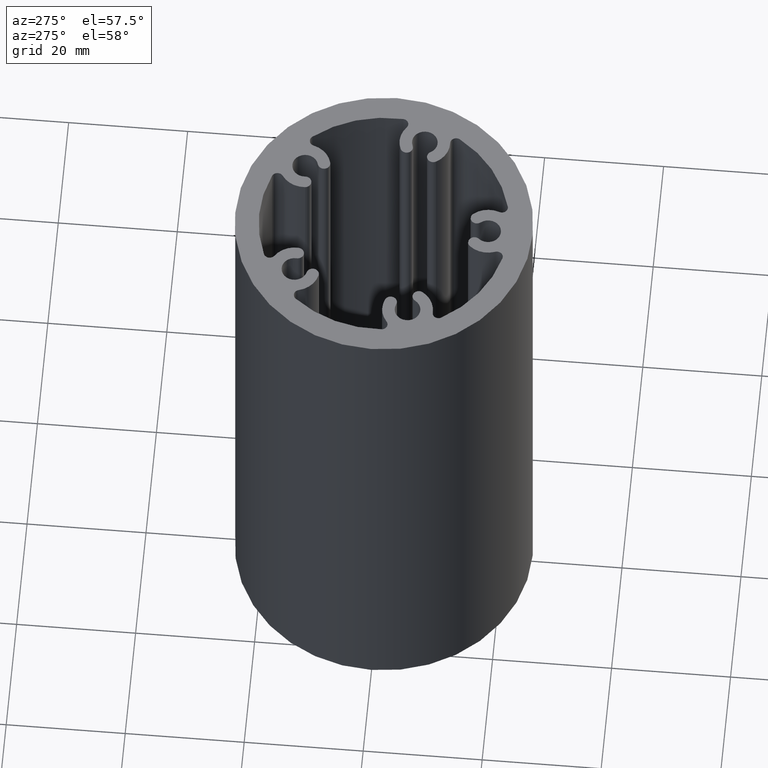
[diagram: clean part render]
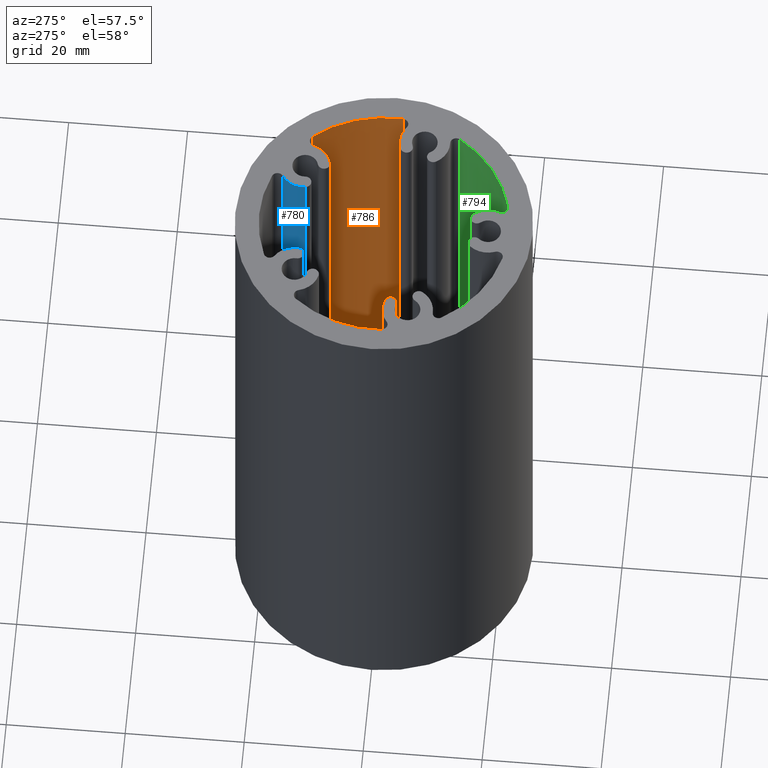
[diagram: same view with three faces highlighted in distinct colors, each labeled with its STEP entity id]
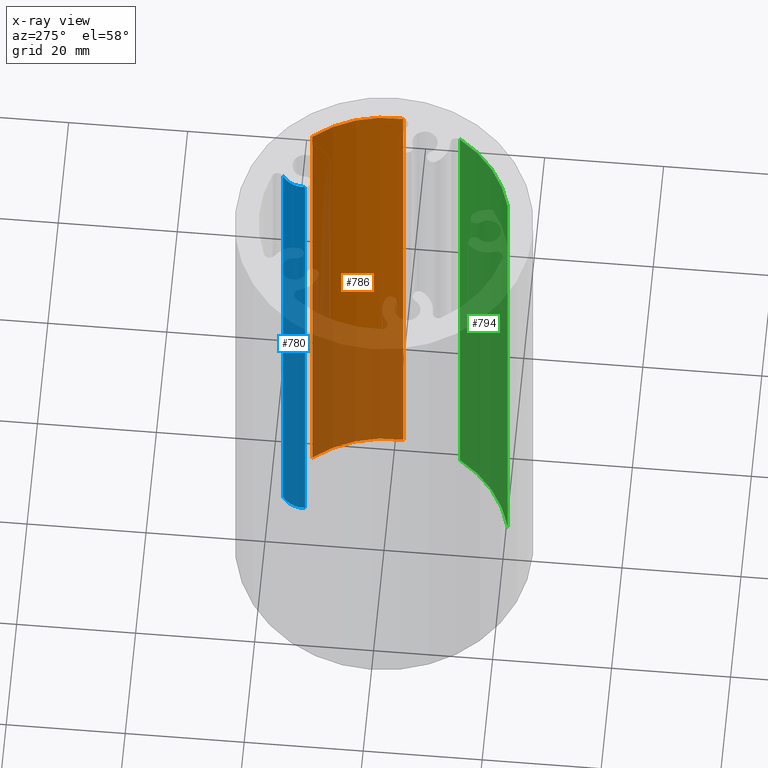
[diagram: x-ray of the same camera — body ghosted, the three highlighted faces saturated]
A machine part, auxiliary view with three faces highlighted in distinct colors.
The next image is the same camera in x-ray (body ghosted, the three faces saturated) — at least one of them is partly hidden behind the body in this view.
Their STEP definitions:

[orange] entity #786 — the highlighted cylindrical surface (partial cylindrical patch) has radius 21 mm, axis along (0, 0, 1).
#46=FACE_OUTER_BOUND('',#89,.T.);
#89=EDGE_LOOP('',(#579,#580,#581,#582));
#161=CIRCLE('',#884,20.9999999999894);
#162=CIRCLE('',#885,20.9999999999894);
#217=LINE('',#1380,#257);
#218=LINE('',#1386,#258);
#257=VECTOR('',#1112,100.);
#258=VECTOR('',#1119,100.);
#323=VERTEX_POINT('',#1377);
#324=VERTEX_POINT('',#1379);
#325=VERTEX_POINT('',#1383);
#326=VERTEX_POINT('',#1385);
#430=EDGE_CURVE('',#324,#323,#217,.T.);
#432=EDGE_CURVE('',#325,#323,#161,.T.);
#433=EDGE_CURVE('',#326,#325,#218,.T.);
#434=EDGE_CURVE('',#324,#326,#162,.T.);
#579=ORIENTED_EDGE('',*,*,#430,.T.);
#580=ORIENTED_EDGE('',*,*,#432,.F.);
#581=ORIENTED_EDGE('',*,*,#433,.F.);
#582=ORIENTED_EDGE('',*,*,#434,.F.);
#745=CYLINDRICAL_SURFACE('',#883,20.9999999999894);
#786=ADVANCED_FACE('',(#46),#745,.F.);
#883=AXIS2_PLACEMENT_3D('',#1382,#1115,#1116);
#884=AXIS2_PLACEMENT_3D('',#1384,#1117,#1118);
#885=AXIS2_PLACEMENT_3D('',#1387,#1120,#1121);
#1112=DIRECTION('',(0.,0.,-1.));
#1115=DIRECTION('center_axis',(0.,0.,1.));
#1116=DIRECTION('ref_axis',(-0.997772101559606,0.0667145662455169,0.));
#1117=DIRECTION('center_axis',(0.,0.,1.));
#1118=DIRECTION('ref_axis',(-0.997772101559606,0.0667145662455169,0.));
#1119=DIRECTION('',(0.,0.,-1.));
#1120=DIRECTION('center_axis',(0.,0.,-1.));
#1121=DIRECTION('ref_axis',(-0.997772101559606,0.0667145662455169,0.));
#1377=CARTESIAN_POINT('',(16.1280160790691,13.4494273986893,-50.));
#1379=CARTESIAN_POINT('',(16.1280160790691,13.4494273986893,50.));
#1380=CARTESIAN_POINT('',(16.1280160790691,13.4494273986893,0.));
#1382=CARTESIAN_POINT('Origin',(0.,0.,0.));
#1383=CARTESIAN_POINT('',(20.9532141327312,-1.40100589115448,-50.));
#1384=CARTESIAN_POINT('Origin',(0.,0.,-50.));
#1385=CARTESIAN_POINT('',(20.9532141327312,-1.40100589115448,50.));
#1386=CARTESIAN_POINT('',(20.9532141327312,-1.40100589115448,0.));
#1387=CARTESIAN_POINT('Origin',(0.,0.,50.));

[blue] entity #780 — the highlighted cylindrical surface (edge-blend (fillet) strip) has radius 4.25 mm, axis along (0, 0, 1).
#40=FACE_OUTER_BOUND('',#83,.T.);
#83=EDGE_LOOP('',(#555,#556,#557,#558));
#149=CIRCLE('',#866,4.250000000017);
#150=CIRCLE('',#867,4.250000000017);
#211=LINE('',#1344,#251);
#212=LINE('',#1350,#252);
#251=VECTOR('',#1070,100.);
#252=VECTOR('',#1077,100.);
#311=VERTEX_POINT('',#1341);
#312=VERTEX_POINT('',#1343);
#313=VERTEX_POINT('',#1347);
#314=VERTEX_POINT('',#1349);
#412=EDGE_CURVE('',#312,#311,#211,.T.);
#414=EDGE_CURVE('',#313,#311,#149,.T.);
#415=EDGE_CURVE('',#314,#313,#212,.T.);
#416=EDGE_CURVE('',#312,#314,#150,.T.);
#555=ORIENTED_EDGE('',*,*,#412,.T.);
#556=ORIENTED_EDGE('',*,*,#414,.F.);
#557=ORIENTED_EDGE('',*,*,#415,.F.);
#558=ORIENTED_EDGE('',*,*,#416,.F.);
#739=CYLINDRICAL_SURFACE('',#865,4.250000000017);
#780=ADVANCED_FACE('',(#40),#739,.T.);
#865=AXIS2_PLACEMENT_3D('',#1346,#1073,#1074);
#866=AXIS2_PLACEMENT_3D('',#1348,#1075,#1076);
#867=AXIS2_PLACEMENT_3D('',#1351,#1078,#1079);
#1070=DIRECTION('',(0.,0.,-1.));
#1073=DIRECTION('center_axis',(0.,0.,1.));
#1074=DIRECTION('ref_axis',(-0.542987235968992,0.839740949087725,0.));
#1075=DIRECTION('center_axis',(0.,0.,-1.));
#1076=DIRECTION('ref_axis',(-0.542987235968992,0.839740949087725,0.));
#1077=DIRECTION('',(0.,0.,-1.));
#1078=DIRECTION('center_axis',(0.,0.,1.));
#1079=DIRECTION('ref_axis',(-0.542987235968992,0.839740949087725,0.));
#1341=CARTESIAN_POINT('',(7.97854431695097,17.7266935738635,-50.));
#1343=CARTESIAN_POINT('',(7.97854431695097,17.7266935738635,50.));
#1344=CARTESIAN_POINT('',(7.97854431695097,17.7266935738635,0.));
#1346=CARTESIAN_POINT('Origin',(10.2862400698201,14.1577945402392,0.));
#1347=CARTESIAN_POINT('',(6.05142597334486,13.7988383196574,-50.));
#1348=CARTESIAN_POINT('Origin',(10.2862400698201,14.1577945402392,-50.));
#1349=CARTESIAN_POINT('',(6.05142597334486,13.7988383196574,50.));
#1350=CARTESIAN_POINT('',(6.05142597334486,13.7988383196574,0.));
#1351=CARTESIAN_POINT('Origin',(10.2862400698201,14.1577945402392,50.));

[green] entity #794 — the highlighted cylindrical surface (partial cylindrical patch) has radius 21 mm, axis along (0, 0, 1).
#54=FACE_OUTER_BOUND('',#97,.T.);
#97=EDGE_LOOP('',(#611,#612,#613,#614));
#177=CIRCLE('',#908,20.9999999999894);
#178=CIRCLE('',#909,20.9999999999894);
#225=LINE('',#1428,#265);
#226=LINE('',#1434,#266);
#265=VECTOR('',#1168,100.);
#266=VECTOR('',#1175,100.);
#339=VERTEX_POINT('',#1425);
#340=VERTEX_POINT('',#1427);
#341=VERTEX_POINT('',#1431);
#342=VERTEX_POINT('',#1433);
#454=EDGE_CURVE('',#340,#339,#225,.T.);
#456=EDGE_CURVE('',#341,#339,#177,.T.);
#457=EDGE_CURVE('',#342,#341,#226,.T.);
#458=EDGE_CURVE('',#340,#342,#178,.T.);
#611=ORIENTED_EDGE('',*,*,#454,.T.);
#612=ORIENTED_EDGE('',*,*,#456,.F.);
#613=ORIENTED_EDGE('',*,*,#457,.F.);
#614=ORIENTED_EDGE('',*,*,#458,.F.);
#753=CYLINDRICAL_SURFACE('',#907,20.9999999999894);
#794=ADVANCED_FACE('',(#54),#753,.F.);
#907=AXIS2_PLACEMENT_3D('',#1430,#1171,#1172);
#908=AXIS2_PLACEMENT_3D('',#1432,#1173,#1174);
#909=AXIS2_PLACEMENT_3D('',#1435,#1176,#1177);
#1168=DIRECTION('',(0.,0.,-1.));
#1171=DIRECTION('center_axis',(0.,0.,1.));
#1172=DIRECTION('ref_axis',(-0.244879211217405,0.969553594141934,0.));
#1173=DIRECTION('center_axis',(0.,0.,1.));
#1174=DIRECTION('ref_axis',(-0.244879211217405,0.969553594141934,0.));
#1175=DIRECTION('',(0.,0.,-1.));
#1176=DIRECTION('center_axis',(0.,0.,-1.));
#1177=DIRECTION('ref_axis',(-0.244879211217405,0.969553594141934,0.));
#1425=CARTESIAN_POINT('',(17.7750001288283,-11.1825475818894,-50.));
#1427=CARTESIAN_POINT('',(17.7750001288283,-11.1825475818894,50.));
#1428=CARTESIAN_POINT('',(17.7750001288283,-11.1825475818894,0.));
#1430=CARTESIAN_POINT('Origin',(0.,0.,0.));
#1431=CARTESIAN_POINT('',(5.14246343555361,-20.3606254769335,-50.));
#1432=CARTESIAN_POINT('Origin',(0.,0.,-50.));
#1433=CARTESIAN_POINT('',(5.14246343555361,-20.3606254769335,50.));
#1434=CARTESIAN_POINT('',(5.14246343555361,-20.3606254769335,0.));
#1435=CARTESIAN_POINT('Origin',(0.,0.,50.));